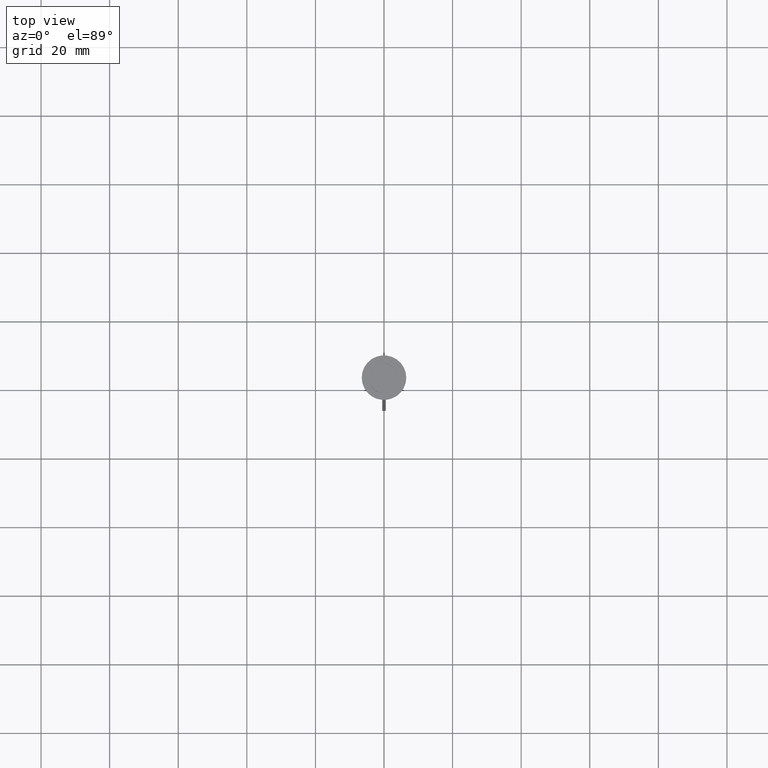
[diagram: clean part render]
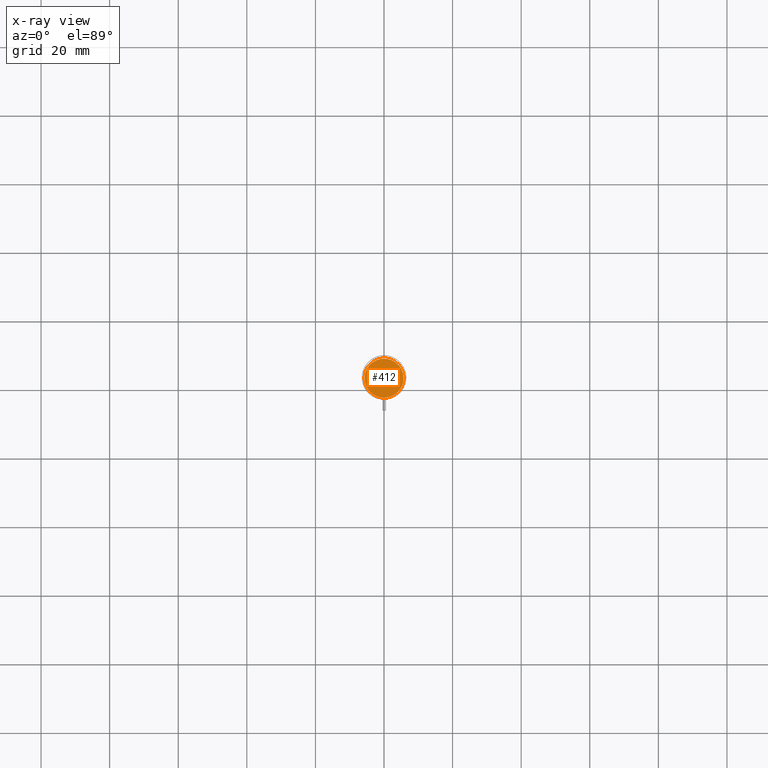
[diagram: x-ray — body ghosted, one internal face saturated and labeled with its STEP entity id]
A machine part, top view, then the same camera in x-ray: the body is ghosted and one INTERNAL B-rep face — a face not visible from any outside direction — is saturated and labeled: STEP entity #412.
In plain terms, the highlighted planar face has unit normal (0, 0, -1).
Its self-contained STEP definition (entity closure, byte-faithful):
#68 = CARTESIAN_POINT ( 'NONE',  ( 0.000000000000000000, 0.000000000000000000, -10.50000000000000178 ) ) ;
#122 = DIRECTION ( 'NONE',  ( -0.000000000000000000, -0.000000000000000000, 1.000000000000000000 ) ) ;
#412 = ADVANCED_FACE ( 'NONE', ( #1186 ), #1207, .F. ) ;
#421 = AXIS2_PLACEMENT_3D ( 'NONE', #1644, #122, #507 ) ;
#507 = DIRECTION ( 'NONE',  ( -1.000000000000000000, 0.000000000000000000, 0.000000000000000000 ) ) ;
#539 = EDGE_CURVE ( 'NONE', #574, #1125, #1831, .T. ) ;
#565 = ORIENTED_EDGE ( 'NONE', *, *, #539, .T. ) ;
#574 = VERTEX_POINT ( 'NONE', #893 ) ;
#757 = CARTESIAN_POINT ( 'NONE',  ( 0.000000000000000000, 0.000000000000000000, -10.50000000000000178 ) ) ;
#893 = CARTESIAN_POINT ( 'NONE',  ( -5.700000000000002842, 0.000000000000000000, -10.50000000000000178 ) ) ;
#967 = ORIENTED_EDGE ( 'NONE', *, *, #1992, .T. ) ;
#1054 = CARTESIAN_POINT ( 'NONE',  ( 5.700000000000002842, 7.164183775012019380E-16, -10.50000000000000178 ) ) ;
#1125 = VERTEX_POINT ( 'NONE', #1054 ) ;
#1138 = CIRCLE ( 'NONE', #1340, 5.700000000000002842 ) ;
#1186 = FACE_OUTER_BOUND ( 'NONE', #2029, .T. ) ;
#1207 = PLANE ( 'NONE',  #1545 ) ;
#1340 = AXIS2_PLACEMENT_3D ( 'NONE', #757, #1354, #1761 ) ;
#1354 = DIRECTION ( 'NONE',  ( -0.000000000000000000, -0.000000000000000000, 1.000000000000000000 ) ) ;
#1545 = AXIS2_PLACEMENT_3D ( 'NONE', #68, #1576, #1764 ) ;
#1576 = DIRECTION ( 'NONE',  ( 0.000000000000000000, 0.000000000000000000, -1.000000000000000000 ) ) ;
#1644 = CARTESIAN_POINT ( 'NONE',  ( 0.000000000000000000, 0.000000000000000000, -10.50000000000000178 ) ) ;
#1761 = DIRECTION ( 'NONE',  ( -1.000000000000000000, 0.000000000000000000, 0.000000000000000000 ) ) ;
#1764 = DIRECTION ( 'NONE',  ( -1.000000000000000000, 0.000000000000000000, -0.000000000000000000 ) ) ;
#1831 = CIRCLE ( 'NONE', #421, 5.700000000000002842 ) ;
#1992 = EDGE_CURVE ( 'NONE', #1125, #574, #1138, .T. ) ;
#2029 = EDGE_LOOP ( 'NONE', ( #565, #967 ) ) ;